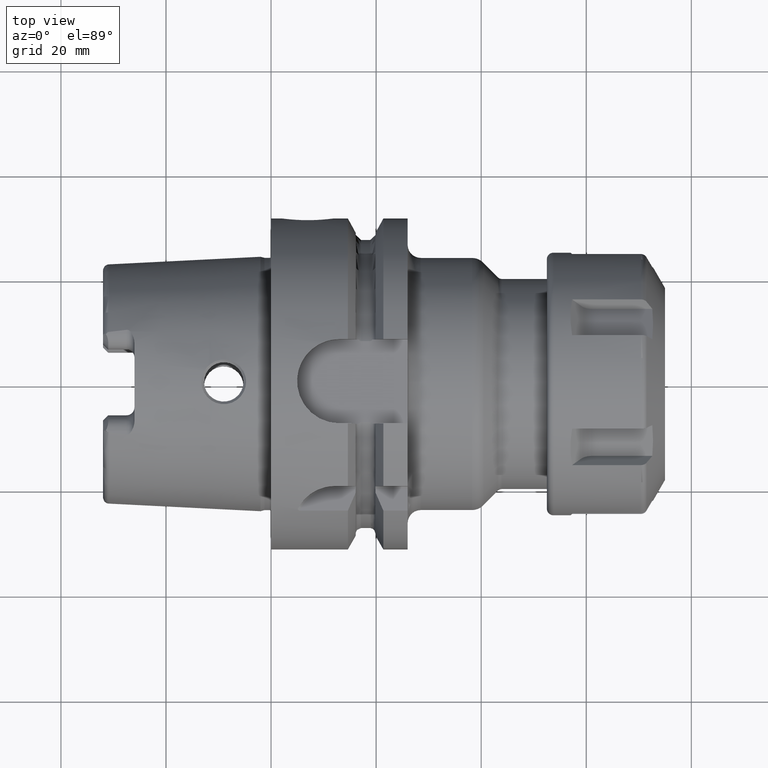
[diagram: clean part render]
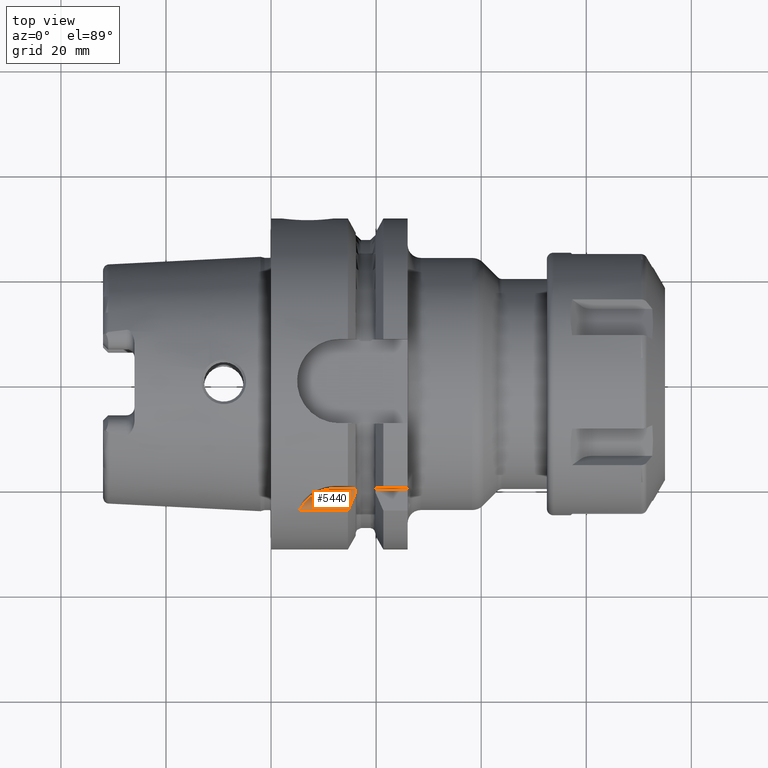
[diagram: same view with one face highlighted and labeled with its STEP entity id]
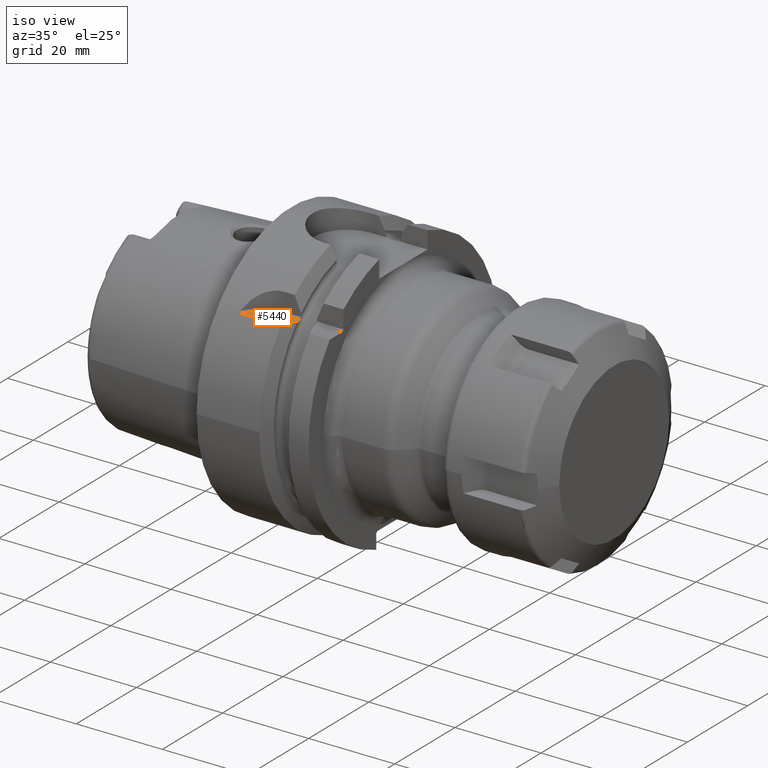
[diagram: same view with one face highlighted and labeled with its STEP entity id]
A machine part, top view. The second image highlights one B-rep face of the part: STEP entity #5440.
A second angle (iso view) of the same face is appended — the face is thin or edge-on in the first view.
In plain terms, the highlighted planar face has unit normal (0, 0, 1).
Its self-contained STEP definition (entity closure, byte-faithful):
#1102=DIRECTION('',(1.E0,2.905293196731E-8,-6.510821817001E-8));
#1103=VECTOR('',#1102,9.286887939886E0);
#1104=CARTESIAN_POINT('',(5.335612985355E0,-2.445868993218E1,1.985000060465E1));
#1105=LINE('',#1104,#1103);
#1200=CARTESIAN_POINT('',(5.335612985355E0,-2.445868993218E1,1.985000060465E1));
#1210=CARTESIAN_POINT('',(1.613536526528E1,-2.025E1,1.985E1));
#1259=CARTESIAN_POINT('',(1.613536526528E1,-2.025E1,1.985E1));
#1260=CARTESIAN_POINT('',(1.613195006880E1,-2.028295639424E1,1.985E1));
#1261=CARTESIAN_POINT('',(1.612677449614E1,-2.034934342887E1,1.985E1));
#1262=CARTESIAN_POINT('',(1.6125E1,-2.041669538428E1,1.985E1));
#1263=CARTESIAN_POINT('',(1.6125E1,-2.045061123781E1,1.985E1));
#1994=DIRECTION('',(0.E0,1.E0,0.E0));
#1995=VECTOR('',#1994,5.505437793093E-1);
#1996=CARTESIAN_POINT('',(1.6125E1,-2.100115501712E1,1.985E1));
#1997=LINE('',#1996,#1995);
#2029=CARTESIAN_POINT('',(1.6125E1,-2.100115501712E1,1.985E1));
#2030=CARTESIAN_POINT('',(1.597384221917E1,-2.136140971936E1,1.985E1));
#2031=CARTESIAN_POINT('',(1.566115300621E1,-2.209786160622E1,1.985E1));
#2032=CARTESIAN_POINT('',(1.516255881786E1,-2.324577082409E1,1.985E1));
#2033=CARTESIAN_POINT('',(1.480632619355E1,-2.404863363206E1,1.985E1));
#2034=CARTESIAN_POINT('',(1.462250092524E1,-2.445868966237E1,1.985E1));
#2071=CARTESIAN_POINT('',(1.213701040303E1,-2.785E1,1.985E1));
#2072=DIRECTION('',(0.E0,0.E0,-1.E0));
#2073=DIRECTION('',(-8.949207840516E-1,4.462250444253E-1,0.E0));
#2074=AXIS2_PLACEMENT_3D('',#2071,#2072,#2073);
#2076=DIRECTION('',(1.E0,1.512295188841E-7,-1.512213087388E-7));
#2077=VECTOR('',#2076,3.998354859672E0);
#2078=CARTESIAN_POINT('',(1.213701040561E1,-2.025000060467E1,1.985000060464E1));
#2079=LINE('',#2078,#2077);
#3038=VERTEX_POINT('',#1200);
#3041=VERTEX_POINT('',#1210);
#3044=CARTESIAN_POINT('',(1.213701040303E1,-2.025000362792E1,1.985E1));
#3045=VERTEX_POINT('',#3044);
#3130=CARTESIAN_POINT('',(1.6125E1,-2.100115501712E1,1.985E1));
#3131=CARTESIAN_POINT('',(1.6125E1,-2.045061123781E1,1.985E1));
#3132=VERTEX_POINT('',#3130);
#3133=VERTEX_POINT('',#3131);
#3146=VERTEX_POINT('',#2034);
#5427=CARTESIAN_POINT('',(0.E0,0.E0,1.985E1));
#5428=DIRECTION('',(0.E0,0.E0,1.E0));
#5429=DIRECTION('',(1.E0,0.E0,0.E0));
#5430=AXIS2_PLACEMENT_3D('',#5427,#5428,#5429);
#5431=PLANE('',#5430);
#5432=ORIENTED_EDGE('',*,*,#4525,.T.);
#5433=ORIENTED_EDGE('',*,*,#4537,.T.);
#5434=ORIENTED_EDGE('',*,*,#4572,.T.);
#5435=ORIENTED_EDGE('',*,*,#5349,.F.);
#5436=ORIENTED_EDGE('',*,*,#5390,.T.);
#5437=ORIENTED_EDGE('',*,*,#4473,.F.);
#5438=EDGE_LOOP('',(#5432,#5433,#5434,#5435,#5436,#5437));
#5439=FACE_OUTER_BOUND('',#5438,.F.);
#5440=ADVANCED_FACE('',(#5439),#5431,.T.);
#1264=B_SPLINE_CURVE_WITH_KNOTS('',3,(#1259,#1260,#1261,#1262,#1263),
.UNSPECIFIED.,.F.,.F.,(4,1,4),(0.E0,5.E-1,1.E0),.UNSPECIFIED.);
#2035=B_SPLINE_CURVE_WITH_KNOTS('',3,(#2029,#2030,#2031,#2032,#2033,#2034),
.UNSPECIFIED.,.F.,.F.,(4,1,1,4),(0.E0,3.333333333333E-1,6.666666666667E-1,1.E0),
.UNSPECIFIED.);
#2075=CIRCLE('',#2074,7.599996372084E0);
#4473=EDGE_CURVE('',#3038,#3146,#1105,.T.);
#4525=EDGE_CURVE('',#3038,#3045,#2075,.T.);
#4537=EDGE_CURVE('',#3045,#3041,#2079,.T.);
#4572=EDGE_CURVE('',#3041,#3133,#1264,.T.);
#5349=EDGE_CURVE('',#3132,#3133,#1997,.T.);
#5390=EDGE_CURVE('',#3132,#3146,#2035,.T.);